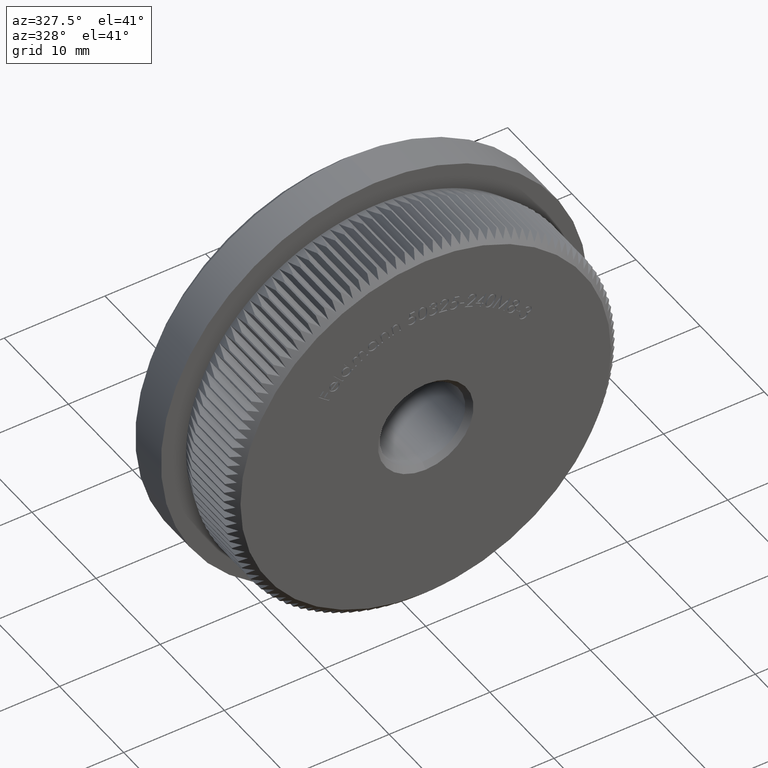
[diagram: clean part render]
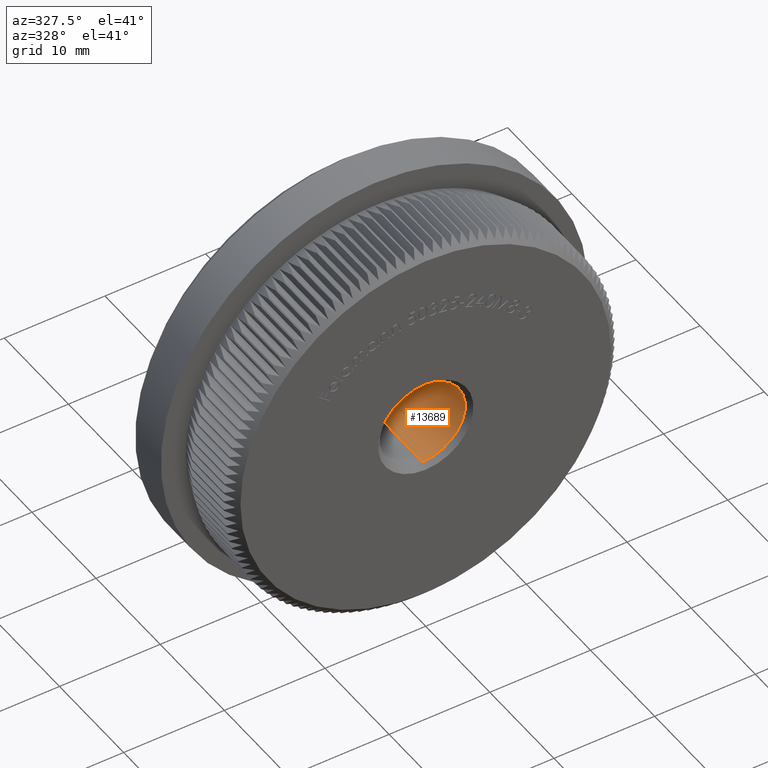
[diagram: same view with one face highlighted and labeled with its STEP entity id]
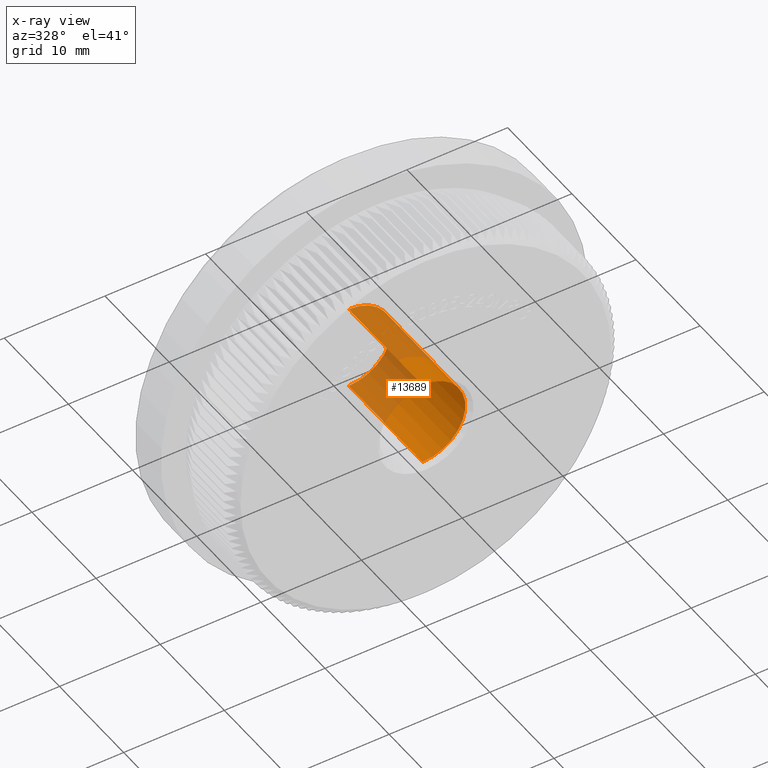
[diagram: x-ray of the same camera — body ghosted, the highlighted face saturated]
A machine part, auxiliary view. The second image highlights one B-rep face of the part: STEP entity #13689.
The next image is the same camera in x-ray: the body ghosted, the highlighted face saturated — about 45% of this face is hidden behind the body in this view.
In plain terms, the highlighted cylindrical surface (partial cylindrical patch) has radius 4.25 mm, axis along (-0, -1, -0).
Its self-contained STEP definition (entity closure, byte-faithful):
#770 = ORIENTED_EDGE ( 'NONE', *, *, #13428, .T. ) ;
#1194 = AXIS2_PLACEMENT_3D ( 'NONE', #8957, #18976, #6435 ) ;
#1770 = VECTOR ( 'NONE', #24466, 1000.000000000000000 ) ;
#2164 = EDGE_CURVE ( 'NONE', #12301, #17771, #15325, .T. ) ;
#2337 = CARTESIAN_POINT ( 'NONE',  ( 5.204748896376248700E-016, 0.5000000000000079900, 4.249999999999997300 ) ) ;
#2378 = VECTOR ( 'NONE', #3297, 1000.000000000000000 ) ;
#2769 = CARTESIAN_POINT ( 'NONE',  ( 5.204748896376248700E-016, 11.99999999999998000, 4.249999999999997300 ) ) ;
#3297 = DIRECTION ( 'NONE',  ( -0.0000000000000000000, -1.000000000000000000, -0.0000000000000000000 ) ) ;
#3839 = CARTESIAN_POINT ( 'NONE',  ( 0.0000000000000000000, 11.99999999999998000, -4.249999999999997300 ) ) ;
#5704 = ORIENTED_EDGE ( 'NONE', *, *, #18660, .T. ) ;
#6435 = DIRECTION ( 'NONE',  ( 0.0000000000000000000, 0.0000000000000000000, -1.000000000000000000 ) ) ;
#8268 = ORIENTED_EDGE ( 'NONE', *, *, #2164, .T. ) ;
#8659 = CARTESIAN_POINT ( 'NONE',  ( 5.204748896376248700E-016, 0.0000000000000000000, 4.249999999999997300 ) ) ;
#8729 = EDGE_CURVE ( 'NONE', #12301, #22647, #30161, .T. ) ;
#8957 = CARTESIAN_POINT ( 'NONE',  ( 0.0000000000000000000, 0.5000000000000079900, 0.0000000000000000000 ) ) ;
#10662 = LINE ( 'NONE', #18049, #2378 ) ;
#12301 = VERTEX_POINT ( 'NONE', #2769 ) ;
#13354 = CYLINDRICAL_SURFACE ( 'NONE', #25765, 4.249999999999997300 ) ;
#13428 = EDGE_CURVE ( 'NONE', #17771, #27497, #10662, .T. ) ;
#13689 = ADVANCED_FACE ( 'NONE', ( #18531 ), #13354, .F. ) ;
#15325 = CIRCLE ( 'NONE', #32361, 4.249999999999997300 ) ;
#17315 = DIRECTION ( 'NONE',  ( 0.0000000000000000000, 0.0000000000000000000, 1.000000000000000000 ) ) ;
#17771 = VERTEX_POINT ( 'NONE', #3839 ) ;
#18049 = CARTESIAN_POINT ( 'NONE',  ( 0.0000000000000000000, 0.0000000000000000000, -4.249999999999997300 ) ) ;
#18531 = FACE_OUTER_BOUND ( 'NONE', #27596, .T. ) ;
#18660 = EDGE_CURVE ( 'NONE', #27497, #22647, #32538, .T. ) ;
#18976 = DIRECTION ( 'NONE',  ( 0.0000000000000000000, -1.000000000000000000, 0.0000000000000000000 ) ) ;
#19248 = DIRECTION ( 'NONE',  ( -0.0000000000000000000, -1.000000000000000000, -0.0000000000000000000 ) ) ;
#21680 = ORIENTED_EDGE ( 'NONE', *, *, #8729, .F. ) ;
#22647 = VERTEX_POINT ( 'NONE', #2337 ) ;
#24466 = DIRECTION ( 'NONE',  ( -0.0000000000000000000, -1.000000000000000000, -0.0000000000000000000 ) ) ;
#25444 = CARTESIAN_POINT ( 'NONE',  ( 0.0000000000000000000, 0.5000000000000079900, -4.249999999999997300 ) ) ;
#25765 = AXIS2_PLACEMENT_3D ( 'NONE', #32001, #19248, #31681 ) ;
#27497 = VERTEX_POINT ( 'NONE', #25444 ) ;
#27596 = EDGE_LOOP ( 'NONE', ( #21680, #8268, #770, #5704 ) ) ;
#30161 = LINE ( 'NONE', #8659, #1770 ) ;
#31681 = DIRECTION ( 'NONE',  ( 0.0000000000000000000, 0.0000000000000000000, -1.000000000000000000 ) ) ;
#32001 = CARTESIAN_POINT ( 'NONE',  ( 0.0000000000000000000, 0.0000000000000000000, 0.0000000000000000000 ) ) ;
#32057 = CARTESIAN_POINT ( 'NONE',  ( 0.0000000000000000000, 11.99999999999998000, 0.0000000000000000000 ) ) ;
#32175 = DIRECTION ( 'NONE',  ( -0.0000000000000000000, 1.000000000000000000, -0.0000000000000000000 ) ) ;
#32361 = AXIS2_PLACEMENT_3D ( 'NONE', #32057, #32175, #17315 ) ;
#32538 = CIRCLE ( 'NONE', #1194, 4.249999999999997300 ) ;